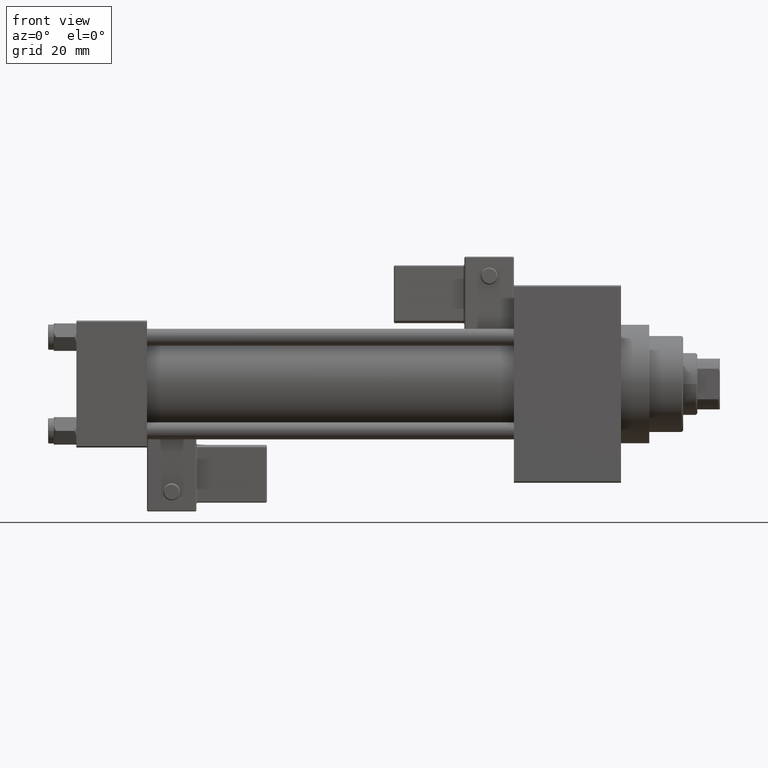
[diagram: clean part render]
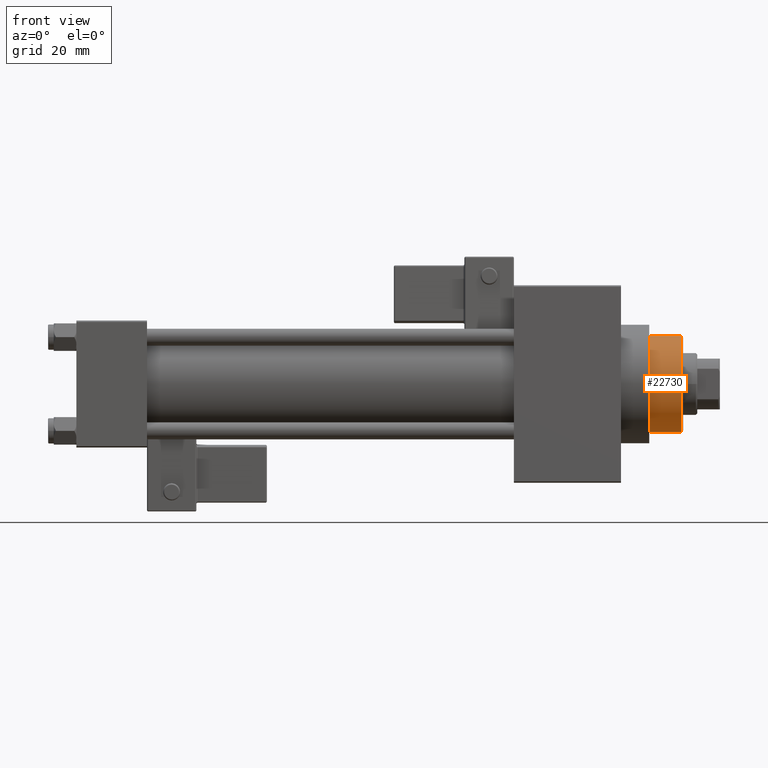
[diagram: same view with one face highlighted and labeled with its STEP entity id]
A machine part, front view. The second image highlights one B-rep face of the part: STEP entity #22730.
In plain terms, the highlighted cylindrical surface (partial cylindrical patch) has radius 17 mm, axis along (-1, 0, 0).
Its self-contained STEP definition (entity closure, byte-faithful):
#1068 = DIRECTION ( 'NONE',  ( 0.000000000000000000, 0.000000000000000000, 1.000000000000000000 ) ) ;
#1871 = ORIENTED_EDGE ( 'NONE', *, *, #20735, .F. ) ;
#1989 = CARTESIAN_POINT ( 'NONE',  ( 0.000000000000000000, 0.000000000000000000, 55.26000000000000512 ) ) ;
#2520 = VERTEX_POINT ( 'NONE', #20950 ) ;
#4674 = CARTESIAN_POINT ( 'NONE',  ( 0.000000000000000000, 0.000000000000000000, 54.76000000000001222 ) ) ;
#5067 = CARTESIAN_POINT ( 'NONE',  ( 0.000000000000000000, 0.000000000000000000, 43.25999999999999801 ) ) ;
#5209 = CARTESIAN_POINT ( 'NONE',  ( 17.00000000000000000, 2.081899558550500280E-15, 54.76000000000001222 ) ) ;
#8694 = CIRCLE ( 'NONE', #39027, 17.00000000000000000 ) ;
#8926 = LINE ( 'NONE', #24162, #37152 ) ;
#11922 = VECTOR ( 'NONE', #43311, 1000.000000000000000 ) ;
#12310 = LINE ( 'NONE', #30799, #11922 ) ;
#13353 = CARTESIAN_POINT ( 'NONE',  ( -17.00000000000000000, 0.000000000000000000, 54.76000000000001222 ) ) ;
#13371 = EDGE_CURVE ( 'NONE', #46236, #17845, #37698, .T. ) ;
#15360 = AXIS2_PLACEMENT_3D ( 'NONE', #4674, #31397, #34411 ) ;
#15674 = AXIS2_PLACEMENT_3D ( 'NONE', #1989, #31239, #25947 ) ;
#16752 = VERTEX_POINT ( 'NONE', #20627 ) ;
#17845 = VERTEX_POINT ( 'NONE', #5209 ) ;
#18940 = EDGE_LOOP ( 'NONE', ( #47399, #28614, #43282, #1871 ) ) ;
#20627 = CARTESIAN_POINT ( 'NONE',  ( -17.00000000000000000, 0.000000000000000000, 43.25999999999999801 ) ) ;
#20735 = EDGE_CURVE ( 'NONE', #46236, #16752, #8926, .T. ) ;
#20950 = CARTESIAN_POINT ( 'NONE',  ( 17.00000000000000000, 2.081899558550500280E-15, 43.25999999999999801 ) ) ;
#20980 = FACE_OUTER_BOUND ( 'NONE', #18940, .T. ) ;
#22730 = ADVANCED_FACE ( 'NONE', ( #20980 ), #36232, .T. ) ;
#24162 = CARTESIAN_POINT ( 'NONE',  ( -17.00000000000000000, 0.000000000000000000, 55.26000000000000512 ) ) ;
#25947 = DIRECTION ( 'NONE',  ( -1.000000000000000000, 0.000000000000000000, 0.000000000000000000 ) ) ;
#28614 = ORIENTED_EDGE ( 'NONE', *, *, #33328, .T. ) ;
#28645 = DIRECTION ( 'NONE',  ( -0.000000000000000000, -0.000000000000000000, -1.000000000000000000 ) ) ;
#30799 = CARTESIAN_POINT ( 'NONE',  ( 17.00000000000000000, 2.081899558550500280E-15, 55.26000000000000512 ) ) ;
#31239 = DIRECTION ( 'NONE',  ( -0.000000000000000000, -0.000000000000000000, -1.000000000000000000 ) ) ;
#31397 = DIRECTION ( 'NONE',  ( 0.000000000000000000, 0.000000000000000000, -1.000000000000000000 ) ) ;
#33328 = EDGE_CURVE ( 'NONE', #17845, #2520, #12310, .T. ) ;
#34411 = DIRECTION ( 'NONE',  ( 1.000000000000000000, 0.000000000000000000, 0.000000000000000000 ) ) ;
#36232 = CYLINDRICAL_SURFACE ( 'NONE', #15674, 17.00000000000000000 ) ;
#37152 = VECTOR ( 'NONE', #28645, 1000.000000000000000 ) ;
#37698 = CIRCLE ( 'NONE', #15360, 17.00000000000000000 ) ;
#37909 = EDGE_CURVE ( 'NONE', #2520, #16752, #8694, .T. ) ;
#39027 = AXIS2_PLACEMENT_3D ( 'NONE', #5067, #1068, #46797 ) ;
#43282 = ORIENTED_EDGE ( 'NONE', *, *, #37909, .T. ) ;
#43311 = DIRECTION ( 'NONE',  ( -0.000000000000000000, -0.000000000000000000, -1.000000000000000000 ) ) ;
#46236 = VERTEX_POINT ( 'NONE', #13353 ) ;
#46797 = DIRECTION ( 'NONE',  ( 1.000000000000000000, 0.000000000000000000, 0.000000000000000000 ) ) ;
#47399 = ORIENTED_EDGE ( 'NONE', *, *, #13371, .T. ) ;